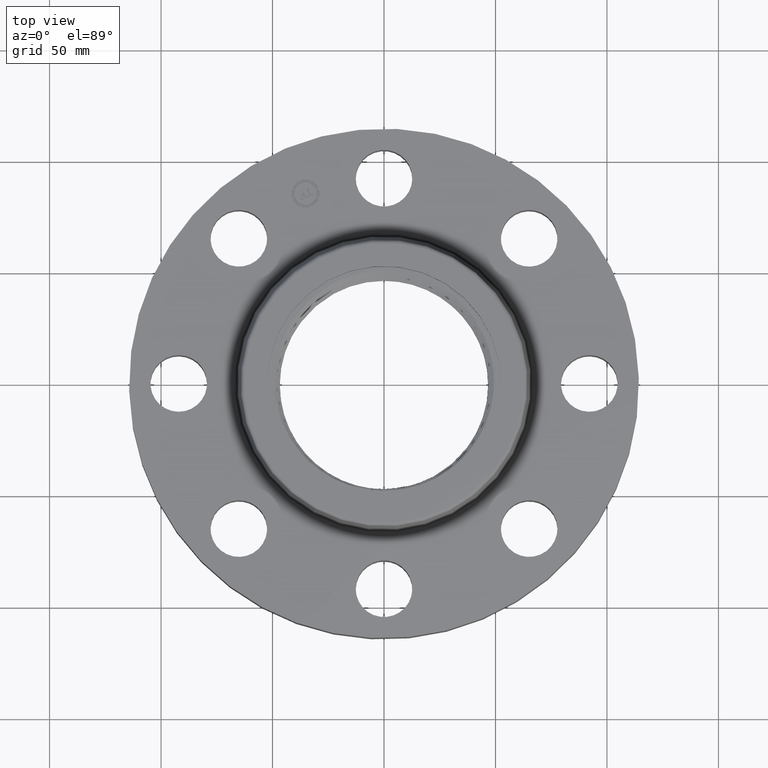
[diagram: clean part render]
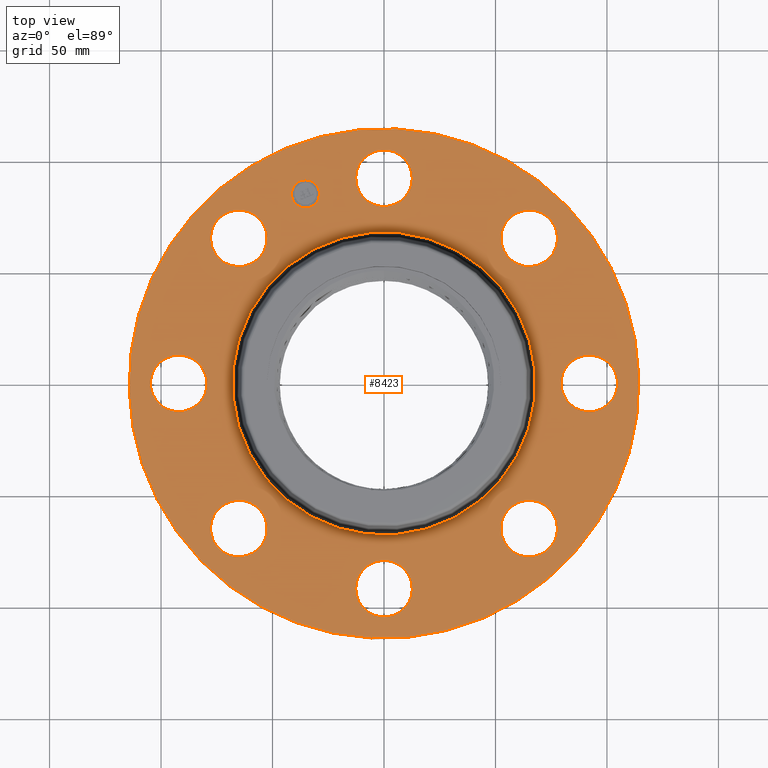
[diagram: same view with one face highlighted and labeled with its STEP entity id]
A machine part, top view. The second image highlights one B-rep face of the part: STEP entity #8423.
In plain terms, the highlighted planar face has unit normal (0, 0, -1).
Its self-contained STEP definition (entity closure, byte-faithful):
#445=AXIS2_PLACEMENT_3D('Circle Axis2P3D',#443,#444,$) ;
#463=AXIS2_PLACEMENT_3D('Circle Axis2P3D',#461,#462,$) ;
#510=AXIS2_PLACEMENT_3D('Circle Axis2P3D',#508,#509,$) ;
#528=AXIS2_PLACEMENT_3D('Circle Axis2P3D',#526,#527,$) ;
#575=AXIS2_PLACEMENT_3D('Circle Axis2P3D',#573,#574,$) ;
#593=AXIS2_PLACEMENT_3D('Circle Axis2P3D',#591,#592,$) ;
#640=AXIS2_PLACEMENT_3D('Circle Axis2P3D',#638,#639,$) ;
#658=AXIS2_PLACEMENT_3D('Circle Axis2P3D',#656,#657,$) ;
#705=AXIS2_PLACEMENT_3D('Circle Axis2P3D',#703,#704,$) ;
#723=AXIS2_PLACEMENT_3D('Circle Axis2P3D',#721,#722,$) ;
#770=AXIS2_PLACEMENT_3D('Circle Axis2P3D',#768,#769,$) ;
#788=AXIS2_PLACEMENT_3D('Circle Axis2P3D',#786,#787,$) ;
#835=AXIS2_PLACEMENT_3D('Circle Axis2P3D',#833,#834,$) ;
#853=AXIS2_PLACEMENT_3D('Circle Axis2P3D',#851,#852,$) ;
#1142=AXIS2_PLACEMENT_3D('Circle Axis2P3D',#1140,#1141,$) ;
#1168=AXIS2_PLACEMENT_3D('Circle Axis2P3D',#1166,#1167,$) ;
#1192=AXIS2_PLACEMENT_3D('Circle Axis2P3D',#1190,#1191,$) ;
#1211=AXIS2_PLACEMENT_3D('Circle Axis2P3D',#1209,#1210,$) ;
#1242=AXIS2_PLACEMENT_3D('Circle Axis2P3D',#1240,#1241,$) ;
#1255=AXIS2_PLACEMENT_3D('Circle Axis2P3D',#1253,#1254,$) ;
#8363=AXIS2_PLACEMENT_3D('Plane Axis2P3D',#8360,#8361,#8362) ;
#8407=AXIS2_PLACEMENT_3D('Circle Axis2P3D',#8405,#8406,$) ;
#8416=AXIS2_PLACEMENT_3D('Circle Axis2P3D',#8414,#8415,$) ;
#419=CARTESIAN_POINT('Vertex',(3.38528723071,-0.438791280947,1.38000000001)) ;
#440=CARTESIAN_POINT('Vertex',(3.86471276932,0.438791280947,1.38000000001)) ;
#443=CARTESIAN_POINT('Axis2P3D Location',(3.62500000001,2.21967232346E-016,1.38000000001)) ;
#461=CARTESIAN_POINT('Axis2P3D Location',(3.62500000001,2.21967232346E-016,1.38000000001)) ;
#484=CARTESIAN_POINT('Vertex',(-2.70403184738,-2.08348726682,1.38000000001)) ;
#505=CARTESIAN_POINT('Vertex',(-2.42249231624,-3.04303689681,1.38000000001)) ;
#508=CARTESIAN_POINT('Axis2P3D Location',(-2.56326208181,-2.56326208181,1.38000000001)) ;
#526=CARTESIAN_POINT('Axis2P3D Location',(-2.56326208181,-2.56326208181,1.38000000001)) ;
#549=CARTESIAN_POINT('Vertex',(-3.38528723071,0.438791280947,1.38000000001)) ;
#570=CARTESIAN_POINT('Vertex',(-3.86471276932,-0.438791280947,1.38000000001)) ;
#573=CARTESIAN_POINT('Axis2P3D Location',(-3.62500000001,-1.22538416614E-015,1.38000000001)) ;
#591=CARTESIAN_POINT('Axis2P3D Location',(-3.62500000001,-1.22538416614E-015,1.38000000001)) ;
#614=CARTESIAN_POINT('Vertex',(2.70403184738,2.08348726682,1.38000000001)) ;
#635=CARTESIAN_POINT('Vertex',(2.42249231624,3.04303689681,1.38000000001)) ;
#638=CARTESIAN_POINT('Axis2P3D Location',(2.56326208181,2.56326208181,1.38000000001)) ;
#656=CARTESIAN_POINT('Axis2P3D Location',(2.56326208181,2.56326208181,1.38000000001)) ;
#679=CARTESIAN_POINT('Vertex',(2.08348726682,-2.70403184738,1.38000000001)) ;
#700=CARTESIAN_POINT('Vertex',(3.04303689681,-2.42249231624,1.38000000001)) ;
#703=CARTESIAN_POINT('Axis2P3D Location',(2.56326208181,-2.56326208181,1.38000000001)) ;
#721=CARTESIAN_POINT('Axis2P3D Location',(2.56326208181,-2.56326208181,1.38000000001)) ;
#744=CARTESIAN_POINT('Vertex',(-2.08348726682,2.70403184738,1.38000000001)) ;
#765=CARTESIAN_POINT('Vertex',(-3.04303689681,2.42249231624,1.38000000001)) ;
#768=CARTESIAN_POINT('Axis2P3D Location',(-2.56326208181,2.56326208181,1.38000000001)) ;
#786=CARTESIAN_POINT('Axis2P3D Location',(-2.56326208181,2.56326208181,1.38000000001)) ;
#809=CARTESIAN_POINT('Vertex',(-0.438791280947,-3.38528723071,1.38000000001)) ;
#830=CARTESIAN_POINT('Vertex',(0.438791280947,-3.86471276932,1.38000000001)) ;
#833=CARTESIAN_POINT('Axis2P3D Location',(4.43934464693E-016,-3.62500000001,1.38000000001)) ;
#851=CARTESIAN_POINT('Axis2P3D Location',(4.43934464693E-016,-3.62500000001,1.38000000001)) ;
#1140=CARTESIAN_POINT('Axis2P3D Location',(0.,0.,1.38000000001)) ;
#1144=CARTESIAN_POINT('Vertex',(-1.2826291864,-2.34783697721,1.38000000001)) ;
#1146=CARTESIAN_POINT('Vertex',(1.2826291864,2.34783697721,1.38000000001)) ;
#1166=CARTESIAN_POINT('Axis2P3D Location',(0.,0.,1.38000000001)) ;
#1187=CARTESIAN_POINT('Vertex',(2.15741492373,3.94912152852,1.38000000001)) ;
#1190=CARTESIAN_POINT('Axis2P3D Location',(0.,0.,1.38000000001)) ;
#1194=CARTESIAN_POINT('Vertex',(-2.15741492373,-3.94912152852,1.38000000001)) ;
#1209=CARTESIAN_POINT('Axis2P3D Location',(0.,0.,1.38000000001)) ;
#1230=CARTESIAN_POINT('Vertex',(0.438791280947,3.38528723071,1.38000000001)) ;
#1237=CARTESIAN_POINT('Vertex',(-0.438791280947,3.86471276932,1.38000000001)) ;
#1240=CARTESIAN_POINT('Axis2P3D Location',(0.,3.62500000001,1.38000000001)) ;
#1253=CARTESIAN_POINT('Axis2P3D Location',(0.,3.62500000001,1.38000000001)) ;
#8360=CARTESIAN_POINT('Axis2P3D Location',(0.,4.50000000002,1.38000000001)) ;
#8405=CARTESIAN_POINT('Axis2P3D Location',(-1.38722744233,3.34906330537,1.38000000001)) ;
#8409=CARTESIAN_POINT('Vertex',(-1.61588762663,3.25434915586,1.38000000001)) ;
#8411=CARTESIAN_POINT('Vertex',(-1.15856725803,3.44377745488,1.38000000001)) ;
#8414=CARTESIAN_POINT('Axis2P3D Location',(-1.38722744233,3.34906330537,1.38000000001)) ;
#444=DIRECTION('Axis2P3D Direction',(0.,-0.,-0.0393700787402)) ;
#462=DIRECTION('Axis2P3D Direction',(0.,-0.,-0.0393700787402)) ;
#509=DIRECTION('Axis2P3D Direction',(0.,0.,-0.0393700787402)) ;
#527=DIRECTION('Axis2P3D Direction',(0.,0.,-0.0393700787402)) ;
#574=DIRECTION('Axis2P3D Direction',(0.,0.,-0.0393700787402)) ;
#592=DIRECTION('Axis2P3D Direction',(0.,0.,-0.0393700787402)) ;
#639=DIRECTION('Axis2P3D Direction',(0.,-0.,-0.0393700787402)) ;
#657=DIRECTION('Axis2P3D Direction',(0.,-0.,-0.0393700787402)) ;
#704=DIRECTION('Axis2P3D Direction',(-0.,0.,-0.0393700787402)) ;
#722=DIRECTION('Axis2P3D Direction',(-0.,0.,-0.0393700787402)) ;
#769=DIRECTION('Axis2P3D Direction',(0.,0.,-0.0393700787402)) ;
#787=DIRECTION('Axis2P3D Direction',(0.,0.,-0.0393700787402)) ;
#834=DIRECTION('Axis2P3D Direction',(-0.,0.,-0.0393700787402)) ;
#852=DIRECTION('Axis2P3D Direction',(-0.,0.,-0.0393700787402)) ;
#1141=DIRECTION('Axis2P3D Direction',(0.,0.,-0.0393700787402)) ;
#1167=DIRECTION('Axis2P3D Direction',(0.,0.,-0.0393700787402)) ;
#1191=DIRECTION('Axis2P3D Direction',(0.,0.,-0.0393700787402)) ;
#1210=DIRECTION('Axis2P3D Direction',(0.,0.,-0.0393700787402)) ;
#1241=DIRECTION('Axis2P3D Direction',(0.,-0.,-0.0393700787402)) ;
#1254=DIRECTION('Axis2P3D Direction',(0.,-0.,-0.0393700787402)) ;
#8361=DIRECTION('Axis2P3D Direction',(0.,0.,-0.0393700787402)) ;
#8362=DIRECTION('Axis2P3D XDirection',(0.0393700787402,0.,0.)) ;
#8406=DIRECTION('Axis2P3D Direction',(0.,0.,-0.0393700787402)) ;
#8415=DIRECTION('Axis2P3D Direction',(0.,0.,-0.0393700787402)) ;
#8366=ORIENTED_EDGE('',*,*,#1196,.F.) ;
#8367=ORIENTED_EDGE('',*,*,#1213,.F.) ;
#8370=ORIENTED_EDGE('',*,*,#1257,.T.) ;
#8371=ORIENTED_EDGE('',*,*,#1244,.T.) ;
#8374=ORIENTED_EDGE('',*,*,#1148,.T.) ;
#8375=ORIENTED_EDGE('',*,*,#1170,.T.) ;
#8378=ORIENTED_EDGE('',*,*,#642,.T.) ;
#8379=ORIENTED_EDGE('',*,*,#660,.T.) ;
#8382=ORIENTED_EDGE('',*,*,#447,.T.) ;
#8383=ORIENTED_EDGE('',*,*,#465,.T.) ;
#8386=ORIENTED_EDGE('',*,*,#707,.T.) ;
#8387=ORIENTED_EDGE('',*,*,#725,.T.) ;
#8390=ORIENTED_EDGE('',*,*,#837,.T.) ;
#8391=ORIENTED_EDGE('',*,*,#855,.T.) ;
#8394=ORIENTED_EDGE('',*,*,#512,.T.) ;
#8395=ORIENTED_EDGE('',*,*,#530,.T.) ;
#8398=ORIENTED_EDGE('',*,*,#577,.T.) ;
#8399=ORIENTED_EDGE('',*,*,#595,.T.) ;
#8402=ORIENTED_EDGE('',*,*,#772,.T.) ;
#8403=ORIENTED_EDGE('',*,*,#790,.T.) ;
#8420=ORIENTED_EDGE('',*,*,#8413,.T.) ;
#8421=ORIENTED_EDGE('',*,*,#8418,.T.) ;
#8372=FACE_BOUND('',#8369,.T.) ;
#8376=FACE_BOUND('',#8373,.T.) ;
#8380=FACE_BOUND('',#8377,.T.) ;
#8384=FACE_BOUND('',#8381,.T.) ;
#8388=FACE_BOUND('',#8385,.T.) ;
#8392=FACE_BOUND('',#8389,.T.) ;
#8396=FACE_BOUND('',#8393,.T.) ;
#8400=FACE_BOUND('',#8397,.T.) ;
#8404=FACE_BOUND('',#8401,.T.) ;
#8422=FACE_BOUND('',#8419,.T.) ;
#8423=ADVANCED_FACE('PartBody',(#8368,#8372,#8376,#8380,#8384,#8388,#8392,#8396,#8400,#8404,#8422),#8364,.F.) ;
#446=CIRCLE('generated circle',#445,0.500000000002) ;
#464=CIRCLE('generated circle',#463,0.500000000002) ;
#511=CIRCLE('generated circle',#510,0.500000000002) ;
#529=CIRCLE('generated circle',#528,0.500000000002) ;
#576=CIRCLE('generated circle',#575,0.500000000002) ;
#594=CIRCLE('generated circle',#593,0.500000000002) ;
#641=CIRCLE('generated circle',#640,0.500000000002) ;
#659=CIRCLE('generated circle',#658,0.500000000002) ;
#706=CIRCLE('generated circle',#705,0.500000000002) ;
#724=CIRCLE('generated circle',#723,0.500000000002) ;
#771=CIRCLE('generated circle',#770,0.500000000002) ;
#789=CIRCLE('generated circle',#788,0.500000000002) ;
#836=CIRCLE('generated circle',#835,0.500000000002) ;
#854=CIRCLE('generated circle',#853,0.500000000002) ;
#1143=CIRCLE('generated circle',#1142,2.67534597788) ;
#1169=CIRCLE('generated circle',#1168,2.67534597788) ;
#1193=CIRCLE('generated circle',#1192,4.50000000002) ;
#1212=CIRCLE('generated circle',#1211,4.50000000002) ;
#1243=CIRCLE('generated circle',#1242,0.500000000002) ;
#1256=CIRCLE('generated circle',#1255,0.500000000002) ;
#8408=CIRCLE('generated circle',#8407,0.247500000001) ;
#8417=CIRCLE('generated circle',#8416,0.247500000001) ;
#447=EDGE_CURVE('',#420,#441,#446,.T.) ;
#465=EDGE_CURVE('',#441,#420,#464,.T.) ;
#512=EDGE_CURVE('',#485,#506,#511,.T.) ;
#530=EDGE_CURVE('',#506,#485,#529,.T.) ;
#577=EDGE_CURVE('',#550,#571,#576,.T.) ;
#595=EDGE_CURVE('',#571,#550,#594,.T.) ;
#642=EDGE_CURVE('',#615,#636,#641,.T.) ;
#660=EDGE_CURVE('',#636,#615,#659,.T.) ;
#707=EDGE_CURVE('',#680,#701,#706,.T.) ;
#725=EDGE_CURVE('',#701,#680,#724,.T.) ;
#772=EDGE_CURVE('',#745,#766,#771,.T.) ;
#790=EDGE_CURVE('',#766,#745,#789,.T.) ;
#837=EDGE_CURVE('',#810,#831,#836,.T.) ;
#855=EDGE_CURVE('',#831,#810,#854,.T.) ;
#1148=EDGE_CURVE('',#1145,#1147,#1143,.T.) ;
#1170=EDGE_CURVE('',#1147,#1145,#1169,.T.) ;
#1196=EDGE_CURVE('',#1188,#1195,#1193,.T.) ;
#1213=EDGE_CURVE('',#1195,#1188,#1212,.T.) ;
#1244=EDGE_CURVE('',#1231,#1238,#1243,.T.) ;
#1257=EDGE_CURVE('',#1238,#1231,#1256,.T.) ;
#8413=EDGE_CURVE('',#8410,#8412,#8408,.T.) ;
#8418=EDGE_CURVE('',#8412,#8410,#8417,.T.) ;
#8365=EDGE_LOOP('',(#8366,#8367)) ;
#8369=EDGE_LOOP('',(#8370,#8371)) ;
#8373=EDGE_LOOP('',(#8374,#8375)) ;
#8377=EDGE_LOOP('',(#8378,#8379)) ;
#8381=EDGE_LOOP('',(#8382,#8383)) ;
#8385=EDGE_LOOP('',(#8386,#8387)) ;
#8389=EDGE_LOOP('',(#8390,#8391)) ;
#8393=EDGE_LOOP('',(#8394,#8395)) ;
#8397=EDGE_LOOP('',(#8398,#8399)) ;
#8401=EDGE_LOOP('',(#8402,#8403)) ;
#8419=EDGE_LOOP('',(#8420,#8421)) ;
#8368=FACE_OUTER_BOUND('',#8365,.T.) ;
#8364=PLANE('',#8363) ;
#420=VERTEX_POINT('',#419) ;
#441=VERTEX_POINT('',#440) ;
#485=VERTEX_POINT('',#484) ;
#506=VERTEX_POINT('',#505) ;
#550=VERTEX_POINT('',#549) ;
#571=VERTEX_POINT('',#570) ;
#615=VERTEX_POINT('',#614) ;
#636=VERTEX_POINT('',#635) ;
#680=VERTEX_POINT('',#679) ;
#701=VERTEX_POINT('',#700) ;
#745=VERTEX_POINT('',#744) ;
#766=VERTEX_POINT('',#765) ;
#810=VERTEX_POINT('',#809) ;
#831=VERTEX_POINT('',#830) ;
#1145=VERTEX_POINT('',#1144) ;
#1147=VERTEX_POINT('',#1146) ;
#1188=VERTEX_POINT('',#1187) ;
#1195=VERTEX_POINT('',#1194) ;
#1231=VERTEX_POINT('',#1230) ;
#1238=VERTEX_POINT('',#1237) ;
#8410=VERTEX_POINT('',#8409) ;
#8412=VERTEX_POINT('',#8411) ;